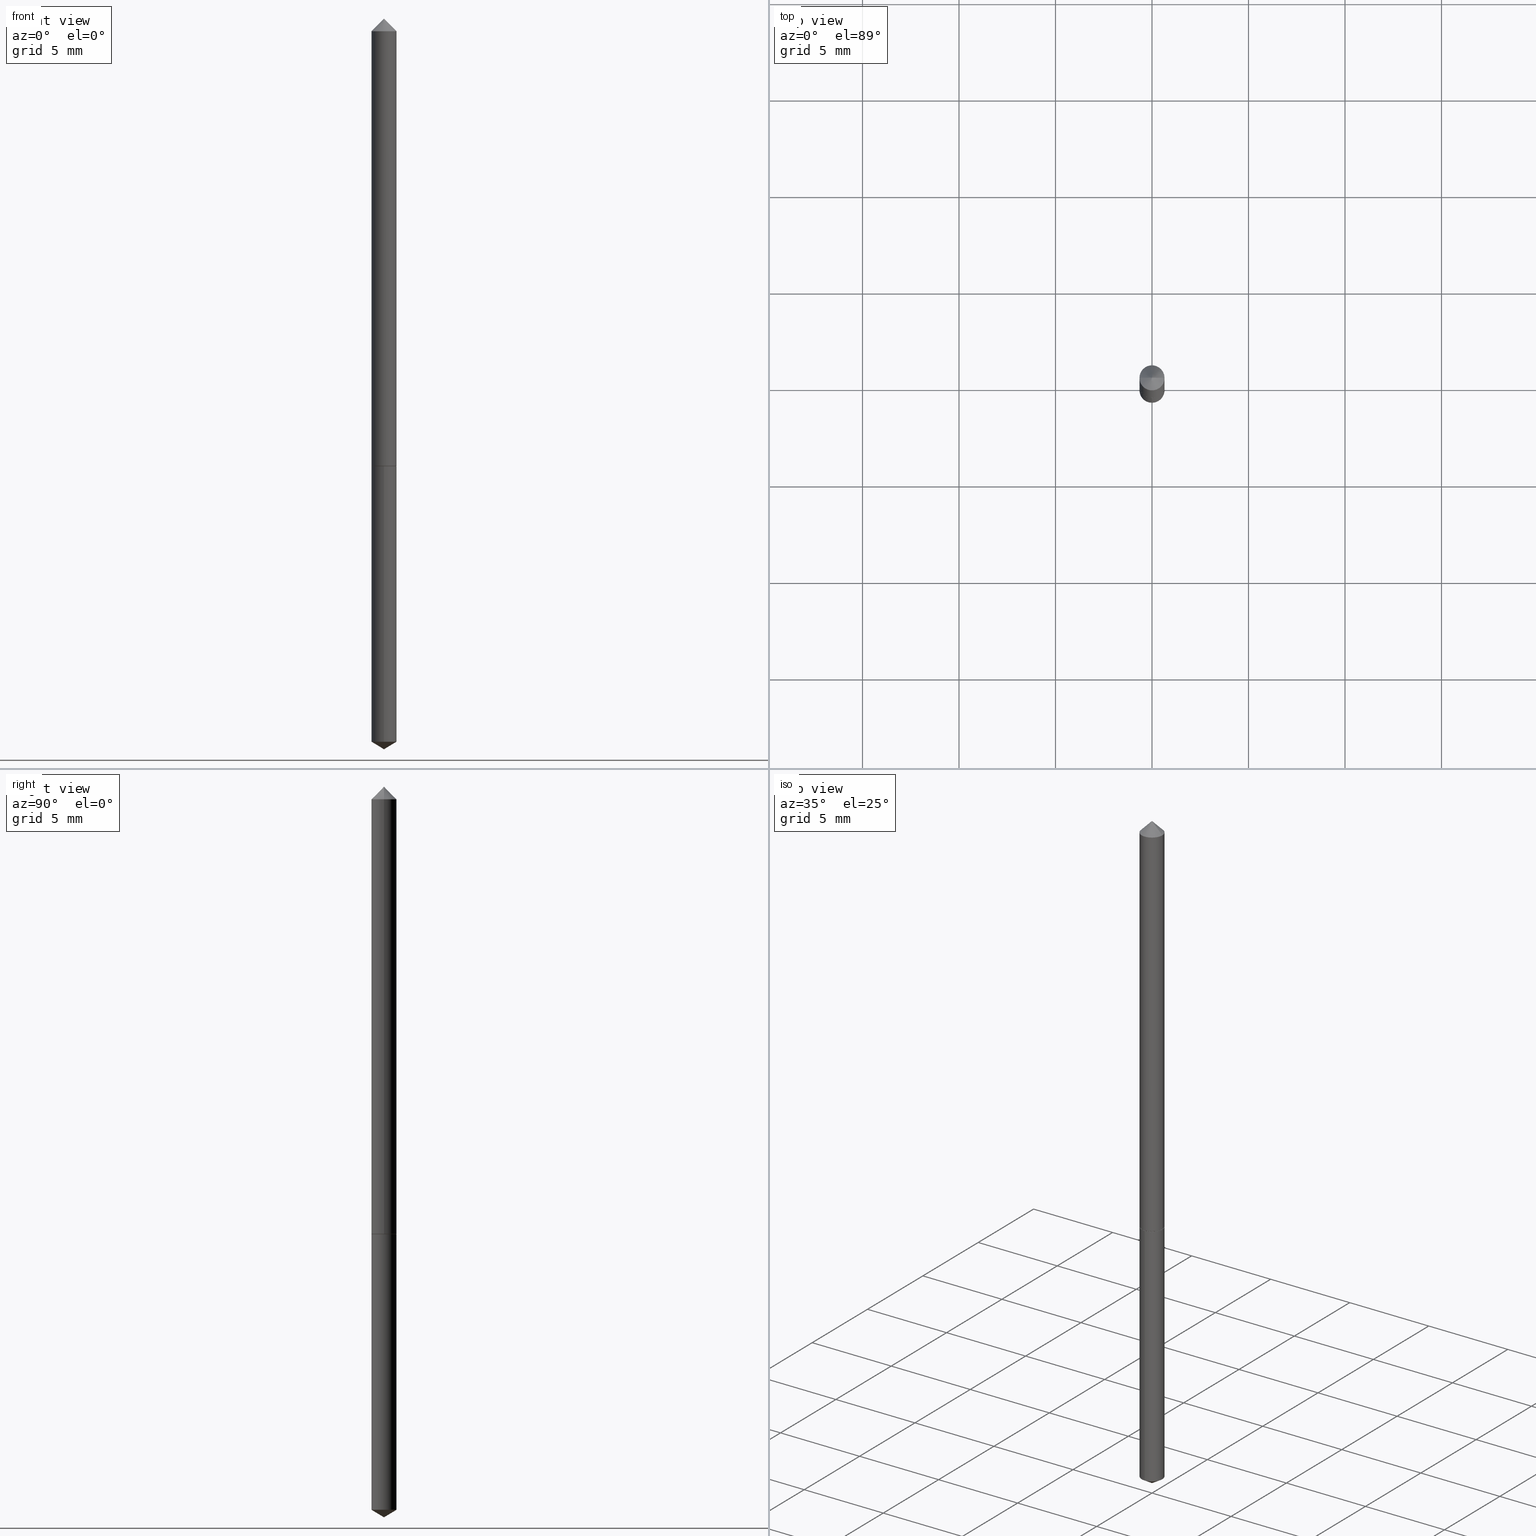
[diagram: canonical four-view strip — front | top / right | iso, engineering-drawing reading convention]
A machine part, canonical four-view strip (front | top / right | iso — engineering-drawing reading convention). The complete STEP part file that produces these views, byte-faithful:
ISO-10303-21;
HEADER;
FILE_DESCRIPTION (( 'STEP AP203' ),
    '1' );
FILE_NAME ('61054.STEP',
    '2024-04-23T02:47:08',
    ( '' ),
    ( '' ),
    'SwSTEP 2.0',
    'SolidWorks 2023',
    '' );
FILE_SCHEMA (( 'CONFIG_CONTROL_DESIGN' ));
ENDSEC;

DATA;
#1 = APPROVAL_ROLE ( '' ) ;
#2 = AXIS2_PLACEMENT_3D ( 'NONE', #333, #274, #327 ) ;
#3 = CLOSED_SHELL ( 'NONE', ( #187, #314, #85, #353, #258 ) ) ;
#4 = CARTESIAN_POINT ( 'NONE',  ( -0.02560000000000000817, -1.474896241959955932E-15, -0.03125000000000020123 ) ) ;
#5 = DIRECTION ( 'NONE',  ( 0.000000000000000000, 0.000000000000000000, 1.000000000000000000 ) ) ;
#6 = CARTESIAN_POINT ( 'NONE',  ( 0.000000000000000000, 0.000000000000000000, 0.000000000000000000 ) ) ;
#7 = LINE ( 'NONE', #120, #307 ) ;
#8 = CALENDAR_DATE ( 2024, 22, 4 ) ;
#9 = DIRECTION ( 'NONE',  ( 1.000000000000000000, -6.982962677686266711E-15, 4.876176775795935232E-29 ) ) ;
#10 = PERSON_AND_ORGANIZATION ( #363, #315 ) ;
#11 = CARTESIAN_POINT ( 'NONE',  ( 1.818989403546080895E-16, 0.02559999999999679893, -0.9183000000000000052 ) ) ;
#12 = AXIS2_PLACEMENT_3D ( 'NONE', #6, #313, #9 ) ;
#13 = LOCAL_TIME ( 22, 47, 8.000000000000000000, #113 ) ;
#14 = CIRCLE ( 'NONE', #230, 0.02560000000000000470 ) ;
#15 = CYLINDRICAL_SURFACE ( 'NONE', #329, 0.02560000000000000470 ) ;
#16 = CARTESIAN_POINT ( 'NONE',  ( 0.02560000000000000817, -2.878726363876175249E-16, -0.03125000000000020123 ) ) ;
#17 = ORIENTED_EDGE ( 'NONE', *, *, #60, .F. ) ;
#18 = CIRCLE ( 'NONE', #2, 0.02510000000000016385 ) ;
#19 = CARTESIAN_POINT ( 'NONE',  ( -9.262422401081032446E-28, 1.322297162338994886E-13, 37.87397874015748300 ) ) ;
#20 = DIRECTION ( 'NONE',  ( -0.7071067811865452413, 2.468850131082233000E-15, -0.7071067811865497932 ) ) ;
#21 = ORIENTED_EDGE ( 'NONE', *, *, #109, .F. ) ;
#22 = ORIENTED_EDGE ( 'NONE', *, *, #135, .T. ) ;
#23 = CARTESIAN_POINT ( 'NONE',  ( 2.245674004719810503E-29, -3.206227313459660461E-15, -0.9182999999999998941 ) ) ;
#24 = EDGE_LOOP ( 'NONE', ( #203, #297, #309, #219 ) ) ;
#25 = CARTESIAN_POINT ( 'NONE',  ( 3.621116154900395292E-29, -5.169803846176300285E-15, -1.480717968152894359 ) ) ;
#26 = VERTEX_POINT ( 'NONE', #4 ) ;
#27 = CONICAL_SURFACE ( 'NONE', #152, 0.02560000000000011572, 0.7853981633974995713 ) ;
#28 =( LENGTH_UNIT ( ) NAMED_UNIT ( * ) SI_UNIT ( $, .METRE. ) );
#29 = ADVANCED_FACE ( 'NONE', ( #349 ), #116, .T. ) ;
#30 = ORIENTED_EDGE ( 'NONE', *, *, #58, .T. ) ;
#31 = ORIENTED_EDGE ( 'NONE', *, *, #123, .F. ) ;
#32 = DATE_TIME_ROLE ( 'creation_date' ) ;
#33 = AXIS2_PLACEMENT_3D ( 'NONE', #290, #148, #181 ) ;
#34 = DIRECTION ( 'NONE',  ( 0.7071067811865837660, -2.468850131082636503E-15, 0.7071067811865112684 ) ) ;
#35 = CARTESIAN_POINT ( 'NONE',  ( -0.02560000000000011572, -3.022582632435652044E-15, -0.9177999999999998382 ) ) ;
#36 = DATE_AND_TIME ( #261, #197 ) ;
#37 = DATE_AND_TIME ( #40, #144 ) ;
#38 = DIRECTION ( 'NONE',  ( -2.445587139930542899E-29, 3.491311878184584916E-15, 1.000000000000000000 ) ) ;
#39 = CC_DESIGN_DATE_AND_TIME_ASSIGNMENT ( #37, #32, ( #259 ) ) ;
#40 = CALENDAR_DATE ( 2024, 22, 4 ) ;
#41 = EDGE_CURVE ( 'NONE', #50, #183, #7, .T. ) ;
#42 = DIRECTION ( 'NONE',  ( -6.982962677686265133E-15, -1.000000000000000000, 0.000000000000000000 ) ) ;
#43 = CARTESIAN_POINT ( 'NONE',  ( 0.000000000000000000, 0.000000000000000000, 0.000000000000000000 ) ) ;
#44 = CARTESIAN_POINT ( 'NONE',  ( 3.658625588293270903E-29, -5.223662932397469409E-15, -1.496099999999999985 ) ) ;
#45 = ORIENTED_EDGE ( 'NONE', *, *, #250, .T. ) ;
#46 = FACE_OUTER_BOUND ( 'NONE', #171, .T. ) ;
#47 = VERTEX_POINT ( 'NONE', #35 ) ;
#48 = FACE_OUTER_BOUND ( 'NONE', #81, .T. ) ;
#49 = CIRCLE ( 'NONE', #256, 0.02560000000000011572 ) ;
#50 = VERTEX_POINT ( 'NONE', #251 ) ;
#51 =( CONVERSION_BASED_UNIT ( 'INCH', #330 ) LENGTH_UNIT ( ) NAMED_UNIT ( #167 ) );
#52 = CARTESIAN_POINT ( 'NONE',  ( -0.02560000000000000817, 6.965505270991948383E-17, -0.03125000000000020123 ) ) ;
#53 = EDGE_CURVE ( 'NONE', #217, #103, #162, .T. ) ;
#54 = ORIENTED_EDGE ( 'NONE', *, *, #109, .T. ) ;
#55 = APPROVAL_PERSON_ORGANIZATION ( #287, #145, #93 ) ;
#56 = CALENDAR_DATE ( 2024, 22, 4 ) ;
#57 = ORIENTED_EDGE ( 'NONE', *, *, #311, .F. ) ;
#58 = EDGE_CURVE ( 'NONE', #328, #163, #14, .T. ) ;
#59 = EDGE_CURVE ( 'NONE', #157, #163, #239, .T. ) ;
#60 = EDGE_CURVE ( 'NONE', #328, #103, #296, .T. ) ;
#61 = ORIENTED_EDGE ( 'NONE', *, *, #53, .F. ) ;
#62 = PERSON_AND_ORGANIZATION ( #363, #315 ) ;
#63 = VECTOR ( 'NONE', #243, 39.37007874015748854 ) ;
#64 = CARTESIAN_POINT ( 'NONE',  ( -1.787638445487459910E-16, -0.02560000000000321047, -0.9182999999999997831 ) ) ;
#65 = DIRECTION ( 'NONE',  ( 1.000000000000000000, 0.000000000000000000, 0.000000000000000000 ) ) ;
#66 = FACE_OUTER_BOUND ( 'NONE', #326, .T. ) ;
#67 = DIRECTION ( 'NONE',  ( -6.982962677686265133E-15, -1.000000000000000000, 5.335640612625512847E-15 ) ) ;
#68 = CARTESIAN_POINT ( 'NONE',  ( 3.658844825793052284E-29, -5.223351700951957556E-15, -1.496099999999999985 ) ) ;
#69 = CONICAL_SURFACE ( 'NONE', #302, 0.02560000000000000817, 0.7853981633974450594 ) ;
#70 = DIRECTION ( 'NONE',  ( -0.7071067811865837660, 7.493145998870485111E-15, 0.7071067811865112684 ) ) ;
#71 = ADVANCED_FACE ( 'NONE', ( #350 ), #151, .T. ) ;
#72 = DIRECTION ( 'NONE',  ( 2.445587139930542899E-29, -3.491311878184584916E-15, -1.000000000000000000 ) ) ;
#73 = DIRECTION ( 'NONE',  ( -2.445468806185136597E-29, 3.491481338843145583E-15, 1.000000000000000000 ) ) ;
#74 = PRODUCT_RELATED_PRODUCT_CATEGORY ( 'detail', '', ( #283 ) ) ;
#75 = LOCAL_TIME ( 22, 47, 8.000000000000000000, #282 ) ;
#76 = APPROVAL_PERSON_ORGANIZATION ( #338, #275, #147 ) ;
#77 = CIRCLE ( 'NONE', #310, 0.02560000000000000470 ) ;
#78 =( NAMED_UNIT ( * ) PLANE_ANGLE_UNIT ( ) SI_UNIT ( $, .RADIAN. ) );
#79 = CARTESIAN_POINT ( 'NONE',  ( 0.02560000000000000817, -2.847375405818002682E-16, -0.03125000000000020123 ) ) ;
#80 = DIRECTION ( 'NONE',  ( -6.982962677686266711E-15, -1.000000000000000000, 3.468864327941576859E-15 ) ) ;
#81 = EDGE_LOOP ( 'NONE', ( #240, #278 ) ) ;
#82 = APPROVAL_STATUS ( 'not_yet_approved' ) ;
#83 = APPLICATION_CONTEXT ( 'configuration controlled 3d designs of mechanical parts and assemblies' ) ;
#84 = EDGE_CURVE ( 'NONE', #157, #328, #212, .T. ) ;
#85 = ADVANCED_FACE ( 'NONE', ( #97 ), #267, .T. ) ;
#86 = CARTESIAN_POINT ( 'NONE',  ( 2.244451270316717701E-29, -3.204481572790238563E-15, -0.9177999999999998382 ) ) ;
#87 = COORDINATED_UNIVERSAL_TIME_OFFSET ( 5, 0, .BEHIND. ) ;
#88 = CARTESIAN_POINT ( 'NONE',  ( -1.787638445487322106E-16, -0.02560000000000517070, -1.480717968152894359 ) ) ;
#89 = APPROVAL_DATE_TIME ( #341, #170 ) ;
#90 = AXIS2_PLACEMENT_3D ( 'NONE', #247, #224, #165 ) ;
#91 = CARTESIAN_POINT ( 'NONE',  ( 3.658842920050085103E-29, -5.223351700951957556E-15, -1.496099999999999985 ) ) ;
#92 =( GEOMETRIC_REPRESENTATION_CONTEXT ( 3 ) GLOBAL_UNCERTAINTY_ASSIGNED_CONTEXT ( ( #98 ) ) GLOBAL_UNIT_ASSIGNED_CONTEXT ( ( #51, #78, #226 ) ) REPRESENTATION_CONTEXT ( 'NONE', 'WORKASPACE' ) );
#93 = APPROVAL_ROLE ( '' ) ;
#94 = DIRECTION ( 'NONE',  ( 1.000000000000000000, -6.982962677686266711E-15, 4.876176775795935232E-29 ) ) ;
#95 = LINE ( 'NONE', #125, #238 ) ;
#96 = CC_DESIGN_PERSON_AND_ORGANIZATION_ASSIGNMENT ( #119, #126, ( #268 ) ) ;
#97 = FACE_OUTER_BOUND ( 'NONE', #264, .T. ) ;
#98 = UNCERTAINTY_MEASURE_WITH_UNIT (LENGTH_MEASURE( 1.000000000000000082E-05 ), #51, 'distance_accuracy_value', 'NONE');
#99 = VERTEX_POINT ( 'NONE', #270 ) ;
#100 = CC_DESIGN_PERSON_AND_ORGANIZATION_ASSIGNMENT ( #175, #289, ( #259 ) ) ;
#101 = CARTESIAN_POINT ( 'NONE',  ( 2.245674004719810503E-29, -3.206227313459660461E-15, -0.9182999999999998941 ) ) ;
#102 = CARTESIAN_POINT ( 'NONE',  ( 7.642090019328601786E-31, -1.091087918388490144E-16, -0.03125000000000020123 ) ) ;
#103 = VERTEX_POINT ( 'NONE', #208 ) ;
#104 = FACE_OUTER_BOUND ( 'NONE', #211, .T. ) ;
#105 = AXIS2_PLACEMENT_3D ( 'NONE', #210, #323, #294 ) ;
#106 = CC_DESIGN_APPROVAL ( #145, ( #273 ) ) ;
#107 = ORIENTED_EDGE ( 'NONE', *, *, #336, .T. ) ;
#108 = DIRECTION ( 'NONE',  ( -2.445468806185136597E-29, 3.491481338843145583E-15, 1.000000000000000000 ) ) ;
#109 = EDGE_CURVE ( 'NONE', #163, #217, #124, .T. ) ;
#110 = CARTESIAN_POINT ( 'NONE',  ( 7.642090019328601786E-31, -1.091087918388490144E-16, -0.03125000000000020123 ) ) ;
#111 = EDGE_LOOP ( 'NONE', ( #45, #22, #136, #225 ) ) ;
#112 = EDGE_CURVE ( 'NONE', #163, #328, #77, .T. ) ;
#113 = COORDINATED_UNIVERSAL_TIME_OFFSET ( 5, 0, .BEHIND. ) ;
#114 = EDGE_LOOP ( 'NONE', ( #360, #164, #107 ) ) ;
#115 = AXIS2_PLACEMENT_3D ( 'NONE', #101, #72, #354 ) ;
#116 = CONICAL_SURFACE ( 'NONE', #317, 0.02560000000000011572, 0.7853981633974995713 ) ;
#117 = MANIFOLD_SOLID_BREP ( 'Body-Move/Copy2[1]', #3 ) ;
#118 = DIRECTION ( 'NONE',  ( -2.445587139930542899E-29, 3.491311878184584916E-15, 1.000000000000000000 ) ) ;
#119 = PERSON_AND_ORGANIZATION ( #363, #315 ) ;
#120 = CARTESIAN_POINT ( 'NONE',  ( 0.02560000000000011572, -3.383245417339008023E-15, -0.9177999999999998382 ) ) ;
#121 = DIRECTION ( 'NONE',  ( 1.000000000000000000, -6.982962677686270655E-15, 0.000000000000000000 ) ) ;
#122 = SHAPE_DEFINITION_REPRESENTATION ( #141, #295 ) ;
#123 = EDGE_CURVE ( 'NONE', #276, #47, #340, .T. ) ;
#124 = LINE ( 'NONE', #130, #346 ) ;
#125 = CARTESIAN_POINT ( 'NONE',  ( 0.02560000000000006368, -1.787638445487688680E-16, 1.248301254603762494E-30 ) ) ;
#126 = PERSON_AND_ORGANIZATION_ROLE ( 'creator' ) ;
#127 = VECTOR ( 'NONE', #269, 39.37007874015748143 ) ;
#128 = CARTESIAN_POINT ( 'NONE',  ( 2.245674004719810503E-29, -3.206227313459660461E-15, -0.9182999999999998941 ) ) ;
#129 = AXIS2_PLACEMENT_3D ( 'NONE', #23, #352, #361 ) ;
#130 = CARTESIAN_POINT ( 'NONE',  ( -1.787638445487459910E-16, -0.02560000000000321047, -0.9182999999999997831 ) ) ;
#131 = CARTESIAN_POINT ( 'NONE',  ( 2.244451270316717701E-29, -3.204481572790238563E-15, -0.9177999999999998382 ) ) ;
#132 = CARTESIAN_POINT ( 'NONE',  ( -0.02510000000000016385, -3.025231859609762456E-15, -0.9182999999999997831 ) ) ;
#133 = CYLINDRICAL_SURFACE ( 'NONE', #90, 0.02560000000000000470 ) ;
#134 = CARTESIAN_POINT ( 'NONE',  ( 7.642090019328601786E-31, -1.091087918388490144E-16, -0.03125000000000020123 ) ) ;
#135 = EDGE_CURVE ( 'NONE', #47, #26, #184, .T. ) ;
#136 = ORIENTED_EDGE ( 'NONE', *, *, #336, .F. ) ;
#137 = CARTESIAN_POINT ( 'NONE',  ( 1.818989403546218453E-16, 0.02559999999999482828, -1.480717968152894359 ) ) ;
#138 = DIRECTION ( 'NONE',  ( -2.445468806185136597E-29, 3.491481338843145583E-15, 1.000000000000000000 ) ) ;
#139 = EDGE_CURVE ( 'NONE', #103, #217, #281, .T. ) ;
#140 = PERSON_AND_ORGANIZATION_ROLE ( 'design_supplier' ) ;
#141 = PRODUCT_DEFINITION_SHAPE ( 'NONE', 'NONE',  #259 ) ;
#142 = MECHANICAL_CONTEXT ( 'NONE', #319, 'mechanical' ) ;
#143 = AXIS2_PLACEMENT_3D ( 'NONE', #43, #351, #94 ) ;
#144 = LOCAL_TIME ( 22, 47, 8.000000000000000000, #308 ) ;
#145 = APPROVAL ( #82, 'UNSPECIFIED' ) ;
#146 = DATE_TIME_ROLE ( 'classification_date' ) ;
#147 = APPROVAL_ROLE ( '' ) ;
#148 = DIRECTION ( 'NONE',  ( -2.445468806185136597E-29, 3.491481338843145583E-15, 1.000000000000000000 ) ) ;
#149 = APPROVAL_STATUS ( 'not_yet_approved' ) ;
#150 = ORIENTED_EDGE ( 'NONE', *, *, #84, .T. ) ;
#151 = CYLINDRICAL_SURFACE ( 'NONE', #143, 0.02560000000000006368 ) ;
#152 = AXIS2_PLACEMENT_3D ( 'NONE', #214, #138, #246 ) ;
#153 = DIRECTION ( 'NONE',  ( -6.982962677686265133E-15, -1.000000000000000000, 0.000000000000000000 ) ) ;
#154 = DIRECTION ( 'NONE',  ( -2.445587139930542899E-29, 3.491311878184584916E-15, 1.000000000000000000 ) ) ;
#155 = ORIENTED_EDGE ( 'NONE', *, *, #112, .T. ) ;
#156 = DIRECTION ( 'NONE',  ( 0.7071067811865452413, -7.319954787623248157E-15, -0.7071067811865497932 ) ) ;
#157 = VERTEX_POINT ( 'NONE', #91 ) ;
#158 = ORIENTED_EDGE ( 'NONE', *, *, #234, .T. ) ;
#159 = DIRECTION ( 'NONE',  ( -1.000000000000000000, 6.982962677686267499E-15, 0.000000000000000000 ) ) ;
#160 = APPROVAL_PERSON_ORGANIZATION ( #62, #170, #1 ) ;
#161 = DESIGN_CONTEXT ( 'detailed design', #83, 'design' ) ;
#162 = CIRCLE ( 'NONE', #331, 0.02560000000000000470 ) ;
#163 = VERTEX_POINT ( 'NONE', #88 ) ;
#164 = ORIENTED_EDGE ( 'NONE', *, *, #339, .T. ) ;
#165 = DIRECTION ( 'NONE',  ( -6.982962677686265133E-15, -1.000000000000000000, 5.335640612625512847E-15 ) ) ;
#166 = CC_DESIGN_PERSON_AND_ORGANIZATION_ASSIGNMENT ( #200, #286, ( #273 ) ) ;
#167 = DIMENSIONAL_EXPONENTS ( 1.000000000000000000, 0.000000000000000000, 0.000000000000000000, 0.000000000000000000, 0.000000000000000000, 0.000000000000000000, 0.000000000000000000 ) ;
#168 = CIRCLE ( 'NONE', #285, 0.02560000000000000817 ) ;
#169 = APPROVAL_DATE_TIME ( #207, #145 ) ;
#170 = APPROVAL ( #316, 'UNSPECIFIED' ) ;
#171 = EDGE_LOOP ( 'NONE', ( #155, #176, #61, #21 ) ) ;
#172 = ORIENTED_EDGE ( 'NONE', *, *, #242, .T. ) ;
#173 = COORDINATED_UNIVERSAL_TIME_OFFSET ( 5, 0, .BEHIND. ) ;
#174 = DIRECTION ( 'NONE',  ( -6.982962677686265133E-15, -1.000000000000000000, 5.335640612625512847E-15 ) ) ;
#175 = PERSON_AND_ORGANIZATION ( #363, #315 ) ;
#176 = ORIENTED_EDGE ( 'NONE', *, *, #60, .T. ) ;
#177 = DIRECTION ( 'NONE',  ( -2.445587139930542899E-29, 3.491311878184584916E-15, 1.000000000000000000 ) ) ;
#178 = DIRECTION ( 'NONE',  ( -2.445587139930542899E-29, 3.491311878184584916E-15, 1.000000000000000000 ) ) ;
#179 = CARTESIAN_POINT ( 'NONE',  ( 0.02560000000000011572, -3.383245417339008023E-15, -0.9177999999999998382 ) ) ;
#180 = CONICAL_SURFACE ( 'NONE', #237, 0.02560000000000000817, 0.7853981633974450594 ) ;
#181 = DIRECTION ( 'NONE',  ( 1.000000000000000000, -6.982962677686270655E-15, 0.000000000000000000 ) ) ;
#182 = CLOSED_SHELL ( 'NONE', ( #299, #71, #29, #322, #254, #216, #357 ) ) ;
#183 = VERTEX_POINT ( 'NONE', #179 ) ;
#184 = LINE ( 'NONE', #292, #127 ) ;
#185 = ORIENTED_EDGE ( 'NONE', *, *, #58, .F. ) ;
#186 = FACE_OUTER_BOUND ( 'NONE', #114, .T. ) ;
#187 = ADVANCED_FACE ( 'NONE', ( #46 ), #15, .T. ) ;
#188 = ORIENTED_EDGE ( 'NONE', *, *, #59, .F. ) ;
#189 = DIRECTION ( 'NONE',  ( -6.982962677686265133E-15, -1.000000000000000000, 5.335640612625512847E-15 ) ) ;
#190 = FACE_OUTER_BOUND ( 'NONE', #301, .T. ) ;
#191 = ORIENTED_EDGE ( 'NONE', *, *, #339, .F. ) ;
#192 = ORIENTED_EDGE ( 'NONE', *, *, #227, .T. ) ;
#193 = ORIENTED_EDGE ( 'NONE', *, *, #311, .T. ) ;
#194 = DIRECTION ( 'NONE',  ( 2.445468806185136597E-29, -3.491481338843145583E-15, -1.000000000000000000 ) ) ;
#195 = ORIENTED_EDGE ( 'NONE', *, *, #139, .F. ) ;
#196 = PLANE ( 'NONE',  #129 ) ;
#197 = LOCAL_TIME ( 22, 47, 8.000000000000000000, #173 ) ;
#198 = AXIS2_PLACEMENT_3D ( 'NONE', #128, #177, #67 ) ;
#199 = CC_DESIGN_SECURITY_CLASSIFICATION ( #273, ( #268 ) ) ;
#200 = PERSON_AND_ORGANIZATION ( #363, #315 ) ;
#201 = CYLINDRICAL_SURFACE ( 'NONE', #12, 0.02560000000000006368 ) ;
#202 = PERSON_AND_ORGANIZATION ( #363, #315 ) ;
#203 = ORIENTED_EDGE ( 'NONE', *, *, #291, .T. ) ;
#204 = VECTOR ( 'NONE', #70, 39.37007874015748143 ) ;
#205 = DIRECTION ( 'NONE',  ( -2.445468806185136597E-29, 3.491481338843145583E-15, 1.000000000000000000 ) ) ;
#206 = CC_DESIGN_DATE_AND_TIME_ASSIGNMENT ( #36, #146, ( #273 ) ) ;
#207 = DATE_AND_TIME ( #8, #13 ) ;
#208 = CARTESIAN_POINT ( 'NONE',  ( 1.818989403546219439E-16, 0.02559999999999679893, -0.9183000000000000052 ) ) ;
#209 = DIRECTION ( 'NONE',  ( -2.445468806185136597E-29, 3.491481338843145583E-15, 1.000000000000000000 ) ) ;
#210 = CARTESIAN_POINT ( 'NONE',  ( 2.245674004719810222E-29, -3.206227313459659672E-15, -0.9182999999999997831 ) ) ;
#211 = EDGE_LOOP ( 'NONE', ( #355, #229 ) ) ;
#212 = LINE ( 'NONE', #68, #63 ) ;
#213 = CC_DESIGN_APPROVAL ( #275, ( #268 ) ) ;
#214 = CARTESIAN_POINT ( 'NONE',  ( 2.244451270316717701E-29, -3.204481572790238563E-15, -0.9177999999999998382 ) ) ;
#215 = FACE_OUTER_BOUND ( 'NONE', #364, .T. ) ;
#216 = ADVANCED_FACE ( 'NONE', ( #241 ), #201, .T. ) ;
#217 = VERTEX_POINT ( 'NONE', #64 ) ;
#218 = ORIENTED_EDGE ( 'NONE', *, *, #277, .T. ) ;
#219 = ORIENTED_EDGE ( 'NONE', *, *, #41, .F. ) ;
#220 = CIRCLE ( 'NONE', #105, 0.02510000000000016385 ) ;
#221 = ORIENTED_EDGE ( 'NONE', *, *, #84, .F. ) ;
#222 = LOCAL_TIME ( 22, 47, 8.000000000000000000, #87 ) ;
#223 = VECTOR ( 'NONE', #320, 39.37007874015748143 ) ;
#224 = DIRECTION ( 'NONE',  ( -2.445587139930542899E-29, 3.491311878184584916E-15, 1.000000000000000000 ) ) ;
#225 = ORIENTED_EDGE ( 'NONE', *, *, #227, .F. ) ;
#226 =( NAMED_UNIT ( * ) SI_UNIT ( $, .STERADIAN. ) SOLID_ANGLE_UNIT ( ) );
#227 = EDGE_CURVE ( 'NONE', #183, #233, #95, .T. ) ;
#228 = CARTESIAN_POINT ( 'NONE',  ( 2.245674004719810503E-29, -3.206227313459660461E-15, -0.9182999999999998941 ) ) ;
#229 = ORIENTED_EDGE ( 'NONE', *, *, #139, .T. ) ;
#230 = AXIS2_PLACEMENT_3D ( 'NONE', #25, #118, #42 ) ;
#231 = APPLICATION_PROTOCOL_DEFINITION ( 'international standard', 'config_control_design', 1994, #83 ) ;
#232 = CARTESIAN_POINT ( 'NONE',  ( 2.245674004719810503E-29, -3.206227313459660461E-15, -0.9182999999999998941 ) ) ;
#233 = VERTEX_POINT ( 'NONE', #16 ) ;
#234 = EDGE_CURVE ( 'NONE', #47, #183, #249, .T. ) ;
#235 = DIRECTION ( 'NONE',  ( -2.445587139930543180E-29, 3.491311878184584916E-15, 1.000000000000000000 ) ) ;
#236 = SECURITY_CLASSIFICATION_LEVEL ( 'unclassified' ) ;
#237 = AXIS2_PLACEMENT_3D ( 'NONE', #134, #245, #159 ) ;
#238 = VECTOR ( 'NONE', #288, 39.37007874015748143 ) ;
#239 = LINE ( 'NONE', #44, #223 ) ;
#240 = ORIENTED_EDGE ( 'NONE', *, *, #291, .F. ) ;
#241 = FACE_OUTER_BOUND ( 'NONE', #266, .T. ) ;
#242 = EDGE_CURVE ( 'NONE', #276, #50, #220, .T. ) ;
#243 = DIRECTION ( 'NONE',  ( 6.090539988449788691E-15, 0.8571673007021152202, 0.5150380749100492705 ) ) ;
#244 = EDGE_LOOP ( 'NONE', ( #188, #150, #304 ) ) ;
#245 = DIRECTION ( 'NONE',  ( 2.445468806185136597E-29, -3.491481338843145583E-15, -1.000000000000000000 ) ) ;
#246 = DIRECTION ( 'NONE',  ( 1.000000000000000000, -6.982962677686270655E-15, 0.000000000000000000 ) ) ;
#247 = CARTESIAN_POINT ( 'NONE',  ( 2.245674004719810503E-29, -3.206227313459660461E-15, -0.9182999999999998941 ) ) ;
#248 = CARTESIAN_POINT ( 'NONE',  ( 7.642090019328601786E-31, -1.091087918388490144E-16, -0.03125000000000020123 ) ) ;
#249 = CIRCLE ( 'NONE', #33, 0.02560000000000011572 ) ;
#250 = EDGE_CURVE ( 'NONE', #183, #47, #49, .T. ) ;
#251 = CARTESIAN_POINT ( 'NONE',  ( 0.02510000000000016385, -3.381499676669586519E-15, -0.9182999999999997831 ) ) ;
#252 = LINE ( 'NONE', #52, #344 ) ;
#253 = CARTESIAN_POINT ( 'NONE',  ( 0.000000000000000000, 0.000000000000000000, 0.000000000000000000 ) ) ;
#254 = ADVANCED_FACE ( 'NONE', ( #66 ), #27, .T. ) ;
#255 = APPLICATION_PROTOCOL_DEFINITION ( 'international standard', 'config_control_design', 1994, #319 ) ;
#256 = AXIS2_PLACEMENT_3D ( 'NONE', #131, #205, #318 ) ;
#257 = VECTOR ( 'NONE', #347, 39.37007874015748143 ) ;
#258 = ADVANCED_FACE ( 'NONE', ( #104 ), #325, .F. ) ;
#259 = PRODUCT_DEFINITION ( 'UNKNOWN', '', #268, #161 ) ;
#260 = CARTESIAN_POINT ( 'NONE',  ( -0.02560000000000011572, -3.022582632435652044E-15, -0.9177999999999998382 ) ) ;
#261 = CALENDAR_DATE ( 2024, 22, 4 ) ;
#262 = DIRECTION ( 'NONE',  ( -6.982962677686266711E-15, -1.000000000000000000, 3.468864327941576859E-15 ) ) ;
#263 = APPROVAL_DATE_TIME ( #345, #275 ) ;
#264 = EDGE_LOOP ( 'NONE', ( #221, #279, #185 ) ) ;
#265 = CARTESIAN_POINT ( 'NONE',  ( -9.262422401081032446E-28, 1.322297162338994886E-13, 37.87397874015748300 ) ) ;
#266 = EDGE_LOOP ( 'NONE', ( #321, #158, #192, #57 ) ) ;
#267 = CONICAL_SURFACE ( 'NONE', #337, 65.52281426576875845, 1.029744258676656754 ) ;
#268 = PRODUCT_DEFINITION_FORMATION_WITH_SPECIFIED_SOURCE ( 'ANY', '', #283, .NOT_KNOWN. ) ;
#269 = DIRECTION ( 'NONE',  ( -2.445468806185136877E-29, 3.491481338843145188E-15, 1.000000000000000000 ) ) ;
#270 = CARTESIAN_POINT ( 'NONE',  ( 1.381689875494609842E-31, -1.972686956446388396E-17, -0.005650000000000031733 ) ) ;
#271 = ORIENTED_EDGE ( 'NONE', *, *, #234, .F. ) ;
#272 = AXIS2_PLACEMENT_3D ( 'NONE', #19, #334, #80 ) ;
#273 = SECURITY_CLASSIFICATION ( '', '', #236 ) ;
#274 = DIRECTION ( 'NONE',  ( -2.445468806185136597E-29, 3.491481338843145583E-15, 1.000000000000000000 ) ) ;
#275 = APPROVAL ( #149, 'UNSPECIFIED' ) ;
#276 = VERTEX_POINT ( 'NONE', #132 ) ;
#277 = EDGE_CURVE ( 'NONE', #99, #26, #252, .T. ) ;
#278 = ORIENTED_EDGE ( 'NONE', *, *, #242, .F. ) ;
#279 = ORIENTED_EDGE ( 'NONE', *, *, #59, .T. ) ;
#280 = DIRECTION ( 'NONE',  ( 1.000000000000000000, -6.982962677686267499E-15, 0.000000000000000000 ) ) ;
#281 = CIRCLE ( 'NONE', #198, 0.02560000000000000470 ) ;
#282 = COORDINATED_UNIVERSAL_TIME_OFFSET ( 5, 0, .BEHIND. ) ;
#283 = PRODUCT ( '61054', '61054', '', ( #142 ) ) ;
#284 = CC_DESIGN_APPROVAL ( #170, ( #259 ) ) ;
#285 = AXIS2_PLACEMENT_3D ( 'NONE', #248, #73, #298 ) ;
#286 = PERSON_AND_ORGANIZATION_ROLE ( 'classification_officer' ) ;
#287 = PERSON_AND_ORGANIZATION ( #363, #315 ) ;
#288 = DIRECTION ( 'NONE',  ( -2.445468806185136877E-29, 3.491481338843145188E-15, 1.000000000000000000 ) ) ;
#289 = PERSON_AND_ORGANIZATION_ROLE ( 'creator' ) ;
#290 = CARTESIAN_POINT ( 'NONE',  ( 2.244451270316717701E-29, -3.204481572790238563E-15, -0.9177999999999998382 ) ) ;
#291 = EDGE_CURVE ( 'NONE', #50, #276, #18, .T. ) ;
#292 = CARTESIAN_POINT ( 'NONE',  ( -0.02560000000000006368, 1.818989403545861000E-16, -1.259247383105259117E-30 ) ) ;
#293 = CONICAL_SURFACE ( 'NONE', #272, 65.52281426576875845, 1.029744258676656754 ) ;
#294 = DIRECTION ( 'NONE',  ( 1.000000000000000000, -6.982962677686276177E-15, 0.000000000000000000 ) ) ;
#295 = ADVANCED_BREP_SHAPE_REPRESENTATION ( '61054', ( #117, #362, #303 ), #92 ) ;
#296 = LINE ( 'NONE', #11, #257 ) ;
#297 = ORIENTED_EDGE ( 'NONE', *, *, #123, .T. ) ;
#298 = DIRECTION ( 'NONE',  ( 1.000000000000000000, -6.982962677686267499E-15, 0.000000000000000000 ) ) ;
#299 = ADVANCED_FACE ( 'NONE', ( #186 ), #180, .T. ) ;
#300 = ORIENTED_EDGE ( 'NONE', *, *, #41, .T. ) ;
#301 = EDGE_LOOP ( 'NONE', ( #191, #218, #193 ) ) ;
#302 = AXIS2_PLACEMENT_3D ( 'NONE', #110, #194, #356 ) ;
#303 = AXIS2_PLACEMENT_3D ( 'NONE', #253, #5, #65 ) ;
#304 = ORIENTED_EDGE ( 'NONE', *, *, #112, .F. ) ;
#305 = LINE ( 'NONE', #79, #332 ) ;
#306 = AXIS2_PLACEMENT_3D ( 'NONE', #102, #108, #280 ) ;
#307 = VECTOR ( 'NONE', #34, 39.37007874015748143 ) ;
#308 = COORDINATED_UNIVERSAL_TIME_OFFSET ( 5, 0, .BEHIND. ) ;
#309 = ORIENTED_EDGE ( 'NONE', *, *, #250, .F. ) ;
#310 = AXIS2_PLACEMENT_3D ( 'NONE', #324, #343, #153 ) ;
#311 = EDGE_CURVE ( 'NONE', #26, #233, #168, .T. ) ;
#312 = PERSON_AND_ORGANIZATION_ROLE ( 'design_owner' ) ;
#313 = DIRECTION ( 'NONE',  ( -2.445468806185136597E-29, 3.491481338843145583E-15, 1.000000000000000000 ) ) ;
#314 = ADVANCED_FACE ( 'NONE', ( #359 ), #293, .T. ) ;
#315 = ORGANIZATION ( 'UNSPECIFIED', 'UNSPECIFIED', '' ) ;
#316 = APPROVAL_STATUS ( 'not_yet_approved' ) ;
#317 = AXIS2_PLACEMENT_3D ( 'NONE', #86, #209, #121 ) ;
#318 = DIRECTION ( 'NONE',  ( 1.000000000000000000, -6.982962677686270655E-15, 0.000000000000000000 ) ) ;
#319 = APPLICATION_CONTEXT ( 'configuration controlled 3d designs of mechanical parts and assemblies' ) ;
#320 = DIRECTION ( 'NONE',  ( -5.985567269335951535E-15, -0.8571673007021116675, 0.5150380749100552658 ) ) ;
#321 = ORIENTED_EDGE ( 'NONE', *, *, #135, .F. ) ;
#322 = ADVANCED_FACE ( 'NONE', ( #48 ), #196, .F. ) ;
#323 = DIRECTION ( 'NONE',  ( -2.445468806185136597E-29, 3.491481338843145583E-15, 1.000000000000000000 ) ) ;
#324 = CARTESIAN_POINT ( 'NONE',  ( 3.621116154900395292E-29, -5.169803846176300285E-15, -1.480717968152894359 ) ) ;
#325 = PLANE ( 'NONE',  #115 ) ;
#326 = EDGE_LOOP ( 'NONE', ( #31, #172, #300, #271 ) ) ;
#327 = DIRECTION ( 'NONE',  ( 1.000000000000000000, -6.982962677686276177E-15, 0.000000000000000000 ) ) ;
#328 = VERTEX_POINT ( 'NONE', #137 ) ;
#329 = AXIS2_PLACEMENT_3D ( 'NONE', #232, #38, #174 ) ;
#330 = LENGTH_MEASURE_WITH_UNIT ( LENGTH_MEASURE( 0.02539999999999999897 ), #28 );
#331 = AXIS2_PLACEMENT_3D ( 'NONE', #228, #178, #189 ) ;
#332 = VECTOR ( 'NONE', #156, 39.37007874015748143 ) ;
#333 = CARTESIAN_POINT ( 'NONE',  ( 2.245674004719810222E-29, -3.206227313459659672E-15, -0.9182999999999997831 ) ) ;
#334 = DIRECTION ( 'NONE',  ( -2.445587139930542899E-29, 3.491311878184584916E-15, 1.000000000000000000 ) ) ;
#335 = CALENDAR_DATE ( 2024, 22, 4 ) ;
#336 = EDGE_CURVE ( 'NONE', #233, #26, #358, .T. ) ;
#337 = AXIS2_PLACEMENT_3D ( 'NONE', #265, #154, #262 ) ;
#338 = PERSON_AND_ORGANIZATION ( #363, #315 ) ;
#339 = EDGE_CURVE ( 'NONE', #99, #233, #305, .T. ) ;
#340 = LINE ( 'NONE', #260, #204 ) ;
#341 = DATE_AND_TIME ( #56, #75 ) ;
#342 = CC_DESIGN_PERSON_AND_ORGANIZATION_ASSIGNMENT ( #202, #312, ( #283 ) ) ;
#343 = DIRECTION ( 'NONE',  ( -2.445587139930542899E-29, 3.491311878184584916E-15, 1.000000000000000000 ) ) ;
#344 = VECTOR ( 'NONE', #20, 39.37007874015748143 ) ;
#345 = DATE_AND_TIME ( #335, #222 ) ;
#346 = VECTOR ( 'NONE', #235, 39.37007874015748143 ) ;
#347 = DIRECTION ( 'NONE',  ( -2.445587139930543180E-29, 3.491311878184584916E-15, 1.000000000000000000 ) ) ;
#348 = CC_DESIGN_PERSON_AND_ORGANIZATION_ASSIGNMENT ( #10, #140, ( #268 ) ) ;
#349 = FACE_OUTER_BOUND ( 'NONE', #24, .T. ) ;
#350 = FACE_OUTER_BOUND ( 'NONE', #111, .T. ) ;
#351 = DIRECTION ( 'NONE',  ( -2.445468806185136597E-29, 3.491481338843145583E-15, 1.000000000000000000 ) ) ;
#352 = DIRECTION ( 'NONE',  ( -2.438088387897960049E-29, 3.491481338843145188E-15, 1.000000000000000000 ) ) ;
#353 = ADVANCED_FACE ( 'NONE', ( #215 ), #133, .T. ) ;
#354 = DIRECTION ( 'NONE',  ( 6.982962677686265922E-15, 1.000000000000000000, -3.491311878184584916E-15 ) ) ;
#355 = ORIENTED_EDGE ( 'NONE', *, *, #53, .T. ) ;
#356 = DIRECTION ( 'NONE',  ( -1.000000000000000000, 6.982962677686267499E-15, 0.000000000000000000 ) ) ;
#357 = ADVANCED_FACE ( 'NONE', ( #190 ), #69, .T. ) ;
#358 = CIRCLE ( 'NONE', #306, 0.02560000000000000817 ) ;
#359 = FACE_OUTER_BOUND ( 'NONE', #244, .T. ) ;
#360 = ORIENTED_EDGE ( 'NONE', *, *, #277, .F. ) ;
#361 = DIRECTION ( 'NONE',  ( 1.000000000000000000, -6.982962677686265922E-15, 4.876176775795935793E-29 ) ) ;
#362 = MANIFOLD_SOLID_BREP ( 'Body-Move/Copy2[2]', #182 ) ;
#363 = PERSON ( 'UNSPECIFIED', 'UNSPECIFIED', 'UNSPECIFIED', ('UNSPECIFIED'), ('UNSPECIFIED'), ('UNSPECIFIED') ) ;
#364 = EDGE_LOOP ( 'NONE', ( #17, #30, #54, #195 ) ) ;
ENDSEC;
END-ISO-10303-21;
